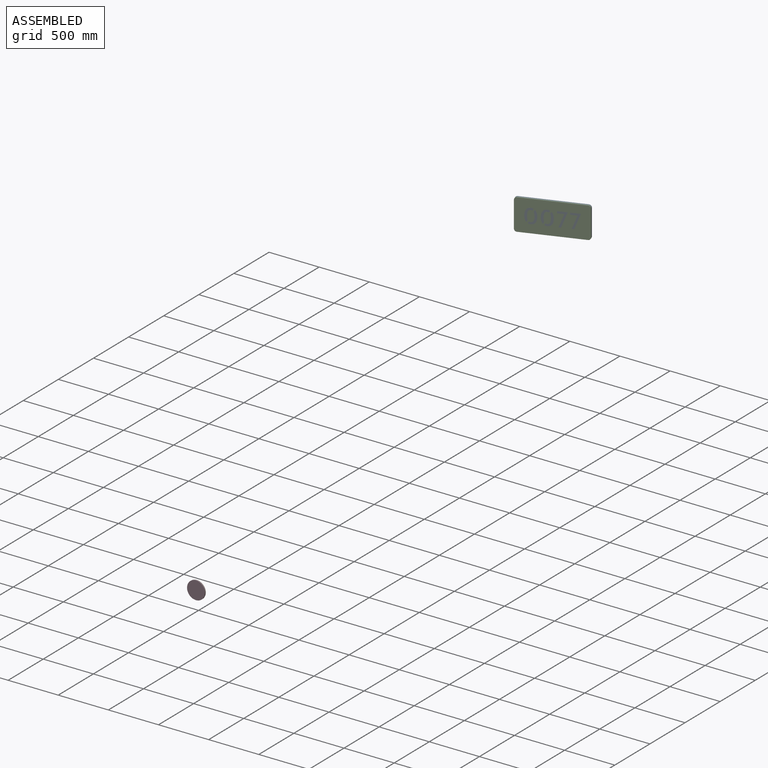
[diagram: assembled view]
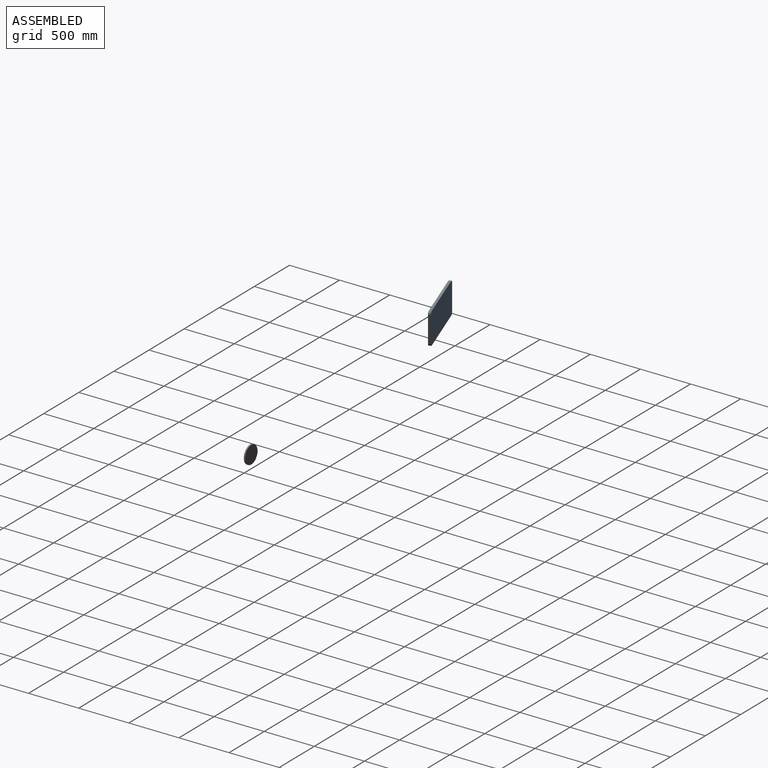
[diagram: assembled view, second angle]
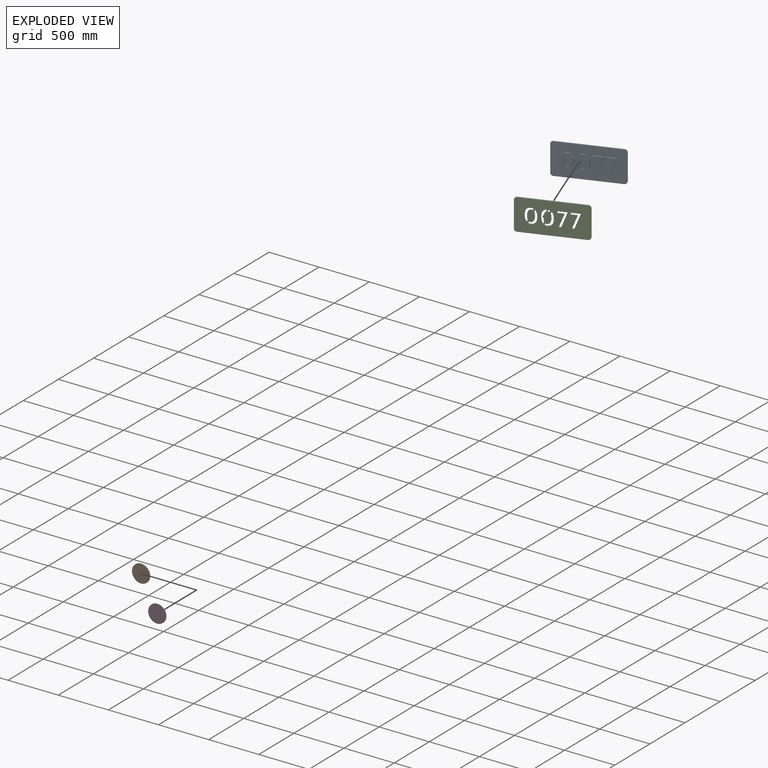
[diagram: exploded view]
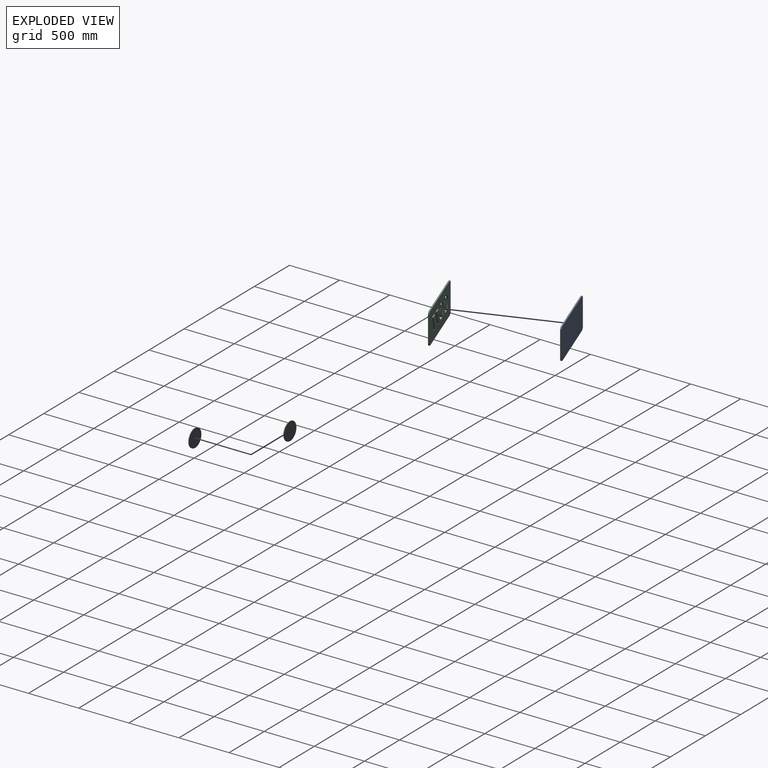
[diagram: exploded view, second angle]
ASSEMBLY  parts=4 mates=2
PART A: 94 faces, bbox 619.8x231.8x311.2 mm
  f0: plane 571.95x214.7mm, normal (0,0,-1), area 7655.5mm2, adj f1,f7,f8,f9
  f1: cylinder r=25.4mm len=28.19mm, axis (0.34,-0.94,0), area 506.7mm2, adj f0,f2,f8,f9
  f2: plane 260.35x11.96mm, normal (0.94,0.34,0), area 3306.4mm2, adj f1,f3,f8,f9
  f3: cylinder r=25.4mm len=28.19mm, axis (0.34,-0.94,0), area 506.7mm2, adj f2,f4,f8,f9
  f4: plane 571.95x214.7mm, normal (0,0,1), area 7655.5mm2, adj f3,f5,f8,f9
  f5: cylinder r=25.4mm len=28.19mm, axis (0.34,-0.94,0), area 506.7mm2, adj f4,f6,f8,f9
  f6: plane 260.35x11.96mm, normal (-0.94,-0.34,0), area 3306.4mm2, adj f5,f7,f8,f9
  f7: cylinder r=25.4mm len=28.19mm, axis (0.34,-0.94,0), area 506.7mm2, adj f0,f6,f8,f9
  f8: plane 615.52x311.15mm, normal (0.34,-0.94,0), area 179897.5mm2, adj f0,f1,f2,f3,f4,f5,f6,f7
  f9: plane 615.52x311.15mm, normal (-0.34,0.94,0), area 202812.7mm2, adj f0,f1,f2,f3,f4,f5,f6,f7
  f10: extruded ~16.65x16.38mm, area 171.9mm2, adj f8,f11,f25,f26
  f11: extruded ~17.94x16.84mm, area 194.4mm2, adj f8,f10,f12,f26
  f12: plane 18.47x14.87mm, normal (0.85,0.3,-0.42), area 259mm2, adj f8,f11,f13,f26
  f13: extruded ~26.64x19.95mm, area 311.2mm2, adj f8,f12,f14,f26
  f14: extruded ~25.99x19.72mm, area 301.5mm2, adj f8,f13,f15,f26
  f15: extruded ~20.73x17.84mm, area 287.4mm2, adj f8,f14,f16,f26
  f16: extruded ~23.07x15.66mm, area 326.7mm2, adj f8,f15,f17,f26
  f17: extruded ~32.1x13.24mm, area 411.8mm2, adj f8,f16,f18,f26
  f18: extruded ~35.83x13.61mm, area 461.1mm2, adj f8,f17,f19,f26
  f19: extruded ~24.05x17.41mm, area 356.1mm2, adj f8,f18,f20,f26
  f20: plane 22.96x15.58mm, normal (0.85,0.3,-0.42), area 322.1mm2, adj f8,f19,f21,f26
  f21: extruded ~15.71x13.34mm, area 206.7mm2, adj f8,f20,f22,f26
  f22: extruded ~21.2x12.49mm, area 270.2mm2, adj f8,f21,f23,f26
  f23: extruded ~25.52x12.78mm, area 326.2mm2, adj f8,f22,f24,f26
  f24: extruded ~16.99x14.11mm, area 231.7mm2, adj f8,f23,f25,f26
  f25: extruded ~15.33x13.71mm, area 176.3mm2, adj f8,f10,f24,f26
  f26: plane 133.88x74.49mm, normal (0.34,-0.94,0), area 3532.3mm2, adj f10,f11,f12,f13,f14,f15,f16,f17
  f27: extruded ~24.14x18.04mm, area 362.2mm2, adj f8,f28,f43,f44
  f28: plane 22.77x15.59mm, normal (-0.85,-0.3,0.43), area 320.1mm2, adj f8,f27,f29,f44
  f29: extruded ~12.02x4.45mm, area 5.5mm2, adj f8,f28,f30,f44
  f30: extruded ~15.72x13.48mm, area 208.3mm2, adj f8,f29,f31,f44
  f31: extruded ~21.6x12.55mm, area 275.4mm2, adj f8,f30,f32,f44
  f32: extruded ~25.62x12.78mm, area 327.3mm2, adj f8,f31,f33,f44
  f33: extruded ~16.98x14.11mm, area 231.5mm2, adj f8,f32,f34,f44
  f34: extruded ~15.36x13.78mm, area 177mm2, adj f8,f33,f35,f44
  f35: extruded ~16.77x16.42mm, area 173.9mm2, adj f8,f34,f36,f44
  f36: extruded ~18.68x17.11mm, area 208.3mm2, adj f8,f35,f37,f44
  f37: plane 18.66x14.93mm, normal (-0.85,-0.3,0.43), area 262.1mm2, adj f8,f36,f38,f44
  f38: extruded ~27.55x20.28mm, area 324.7mm2, adj f8,f37,f39,f44
  f39: extruded ~26.1x19.76mm, area 302.8mm2, adj f8,f38,f40,f44
  f40: extruded ~20.72x17.83mm, area 286.4mm2, adj f8,f39,f41,f44
  f41: extruded ~23.17x15.69mm, area 328.4mm2, adj f8,f40,f42,f44
  f42: extruded ~32.2x13.25mm, area 413mm2, adj f8,f41,f43,f44
  f43: extruded ~36.33x13.65mm, area 467.7mm2, adj f8,f27,f42,f44
  f44: plane 134.48x75.61mm, normal (0.34,-0.94,0), area 3588.4mm2, adj f27,f28,f29,f30,f31,f32,f33,f34
  f45: extruded ~16.65x16.38mm, area 171.9mm2, adj f8,f46,f60,f61
  f46: extruded ~17.94x16.84mm, area 194.4mm2, adj f8,f45,f47,f61
  f47: plane 18.47x14.87mm, normal (0.85,0.3,-0.42), area 259mm2, adj f8,f46,f48,f61
  f48: extruded ~26.64x19.95mm, area 311.2mm2, adj f8,f47,f49,f61
  f49: extruded ~25.99x19.72mm, area 301.5mm2, adj f8,f48,f50,f61
  f50: extruded ~20.73x17.84mm, area 287.4mm2, adj f8,f49,f51,f61
  f51: extruded ~23.07x15.66mm, area 326.7mm2, adj f8,f50,f52,f61
  f52: extruded ~32.1x13.24mm, area 411.8mm2, adj f8,f51,f53,f61
  f53: extruded ~35.83x13.61mm, area 461.1mm2, adj f8,f52,f54,f61
  f54: extruded ~24.05x17.41mm, area 356.1mm2, adj f8,f53,f55,f61
  f55: plane 22.96x15.58mm, normal (0.85,0.3,-0.42), area 322.1mm2, adj f8,f54,f56,f61
  f56: extruded ~15.71x13.34mm, area 206.7mm2, adj f8,f55,f57,f61
  f57: extruded ~21.2x12.49mm, area 270.2mm2, adj f8,f56,f58,f61
  f58: extruded ~25.52x12.78mm, area 326.2mm2, adj f8,f57,f59,f61
  f59: extruded ~16.99x14.11mm, area 231.7mm2, adj f8,f58,f60,f61
  f60: extruded ~15.33x13.71mm, area 176.3mm2, adj f8,f45,f59,f61
  f61: plane 133.88x74.49mm, normal (0.34,-0.94,0), area 3532.3mm2, adj f45,f46,f47,f48,f49,f50,f51,f52
  f62: extruded ~24.14x18.04mm, area 362.2mm2, adj f8,f63,f78,f79
  f63: plane 22.77x15.59mm, normal (-0.85,-0.3,0.43), area 320.1mm2, adj f8,f62,f64,f79
  f64: extruded ~12.02x4.45mm, area 5.5mm2, adj f8,f63,f65,f79
  f65: extruded ~15.72x13.48mm, area 208.3mm2, adj f8,f64,f66,f79
  f66: extruded ~21.6x12.55mm, area 275.4mm2, adj f8,f65,f67,f79
  f67: extruded ~25.62x12.78mm, area 327.3mm2, adj f8,f66,f68,f79
  f68: extruded ~16.98x14.11mm, area 231.5mm2, adj f8,f67,f69,f79
  f69: extruded ~15.36x13.78mm, area 177mm2, adj f8,f68,f70,f79
  f70: extruded ~16.77x16.42mm, area 173.9mm2, adj f8,f69,f71,f79
  f71: extruded ~18.68x17.11mm, area 208.3mm2, adj f8,f70,f72,f79
  f72: plane 18.66x14.93mm, normal (-0.85,-0.3,0.43), area 262.1mm2, adj f8,f71,f73,f79
  f73: extruded ~27.55x20.28mm, area 324.7mm2, adj f8,f72,f74,f79
  f74: extruded ~26.1x19.76mm, area 302.8mm2, adj f8,f73,f75,f79
  f75: extruded ~20.72x17.83mm, area 286.4mm2, adj f8,f74,f76,f79
  f76: extruded ~23.17x15.69mm, area 328.4mm2, adj f8,f75,f77,f79
  f77: extruded ~32.2x13.25mm, area 413mm2, adj f8,f76,f78,f79
  f78: extruded ~36.33x13.65mm, area 467.7mm2, adj f8,f62,f77,f79
  f79: plane 134.48x75.61mm, normal (0.34,-0.94,0), area 3588.4mm2, adj f62,f63,f64,f65,f66,f67,f68,f69
  f80: plane 125.46x51.6mm, normal (-0.87,-0.31,0.37), area 1716.4mm2, adj f8,f81,f85,f86
  f81: plane 24.98x19.36mm, normal (0,0,-1), area 279.3mm2, adj f8,f80,f82,f86
  f82: plane 144.69x57.16mm, normal (0.88,0.31,-0.36), area 1971.1mm2, adj f8,f81,f83,f86
  f83: plane 89.88x42.54mm, normal (0,0,1), area 1154.5mm2, adj f8,f82,f84,f86
  f84: plane 19.22x11.96mm, normal (-0.94,-0.34,0), area 244.1mm2, adj f8,f83,f85,f86
  f85: plane 63.61x33.15mm, normal (0,0,-1), area 800.3mm2, adj f8,f80,f84,f86
  f86: plane 144.69x85.61mm, normal (0.34,-0.94,0), area 4336.9mm2, adj f80,f81,f82,f83,f84,f85
  f87: plane 125.46x51.6mm, normal (-0.87,-0.31,0.37), area 1716.4mm2, adj f8,f88,f92,f93
  f88: plane 24.98x19.36mm, normal (0,0,-1), area 279.3mm2, adj f8,f87,f89,f93
  f89: plane 144.69x57.16mm, normal (0.88,0.31,-0.36), area 1971.1mm2, adj f8,f88,f90,f93
  f90: plane 89.88x42.54mm, normal (0,0,1), area 1154.5mm2, adj f8,f89,f91,f93
  f91: plane 19.22x11.96mm, normal (-0.94,-0.34,0), area 244.1mm2, adj f8,f90,f92,f93
  f92: plane 63.61x33.15mm, normal (0,0,-1), area 800.3mm2, adj f8,f87,f91,f93
  f93: plane 144.69x85.61mm, normal (0.34,-0.94,0), area 4336.9mm2, adj f87,f88,f89,f90,f91,f92
PART B: 3 faces, bbox 177.8x6.4x177.8 mm
  f0: cylinder r=88.9mm len=177.8mm, axis (0,1,0), area 3547mm2, adj f1,f2
  f1: plane 177.8x177.8mm, normal (0,-1,0), area 24828.7mm2, adj f0
  f2: plane 177.8x177.8mm, normal (0,1,0), area 24828.7mm2, adj f0
PART C: 88 faces, bbox 619.8x231.8x311.2 mm
  f0: extruded ~17.94x16.84mm, area 194.4mm2, adj f1,f85,f86,f87
  f1: extruded ~16.65x16.38mm, area 171.9mm2, adj f0,f2,f86,f87
  f2: extruded ~15.33x13.71mm, area 176.3mm2, adj f1,f3,f86,f87
  f3: extruded ~16.99x14.11mm, area 231.7mm2, adj f2,f4,f86,f87
  f4: extruded ~25.52x12.78mm, area 326.2mm2, adj f3,f5,f86,f87
  f5: extruded ~21.2x12.49mm, area 270.2mm2, adj f4,f6,f86,f87
  f6: extruded ~15.71x13.34mm, area 206.7mm2, adj f5,f7,f86,f87
  f7: plane 22.96x15.58mm, normal (-0.85,-0.3,0.42), area 322.1mm2, adj f6,f8,f86,f87
  f8: extruded ~24.05x17.41mm, area 356.1mm2, adj f7,f9,f86,f87
  f9: extruded ~35.83x13.61mm, area 461.1mm2, adj f8,f10,f86,f87
  f10: extruded ~32.1x13.24mm, area 411.8mm2, adj f9,f11,f86,f87
  f11: extruded ~23.07x15.66mm, area 326.7mm2, adj f10,f12,f86,f87
  f12: extruded ~20.73x17.84mm, area 287.4mm2, adj f11,f13,f86,f87
  f13: extruded ~25.99x19.72mm, area 301.5mm2, adj f12,f14,f86,f87
  f14: extruded ~26.64x19.95mm, area 311.2mm2, adj f13,f85,f86,f87
  f15: plane 22.77x15.59mm, normal (0.85,0.3,-0.43), area 320.1mm2, adj f16,f79,f86,f87
  f16: extruded ~24.14x18.04mm, area 362.2mm2, adj f15,f17,f86,f87
  f17: extruded ~36.33x13.65mm, area 467.7mm2, adj f16,f18,f86,f87
  f18: extruded ~32.2x13.25mm, area 413mm2, adj f17,f19,f86,f87
  f19: extruded ~23.17x15.69mm, area 328.4mm2, adj f18,f20,f86,f87
  f20: extruded ~20.72x17.83mm, area 286.4mm2, adj f19,f21,f86,f87
  f21: extruded ~26.1x19.76mm, area 302.8mm2, adj f20,f22,f86,f87
  f22: extruded ~27.55x20.28mm, area 324.7mm2, adj f21,f23,f86,f87
  f23: plane 18.66x14.93mm, normal (0.85,0.3,-0.43), area 262.1mm2, adj f22,f24,f86,f87
  f24: extruded ~18.68x17.11mm, area 208.3mm2, adj f23,f25,f86,f87
  f25: extruded ~16.77x16.42mm, area 173.9mm2, adj f24,f26,f86,f87
  f26: extruded ~15.36x13.78mm, area 177mm2, adj f25,f27,f86,f87
  f27: extruded ~16.98x14.11mm, area 231.5mm2, adj f26,f28,f86,f87
  f28: extruded ~25.62x12.78mm, area 327.3mm2, adj f27,f29,f86,f87
  f29: extruded ~21.6x12.55mm, area 275.4mm2, adj f28,f30,f86,f87
  f30: extruded ~15.72x13.48mm, area 208.3mm2, adj f29,f79,f86,f87
  f31: extruded ~17.94x16.84mm, area 194.4mm2, adj f32,f80,f86,f87
  f32: extruded ~16.65x16.38mm, area 171.9mm2, adj f31,f33,f86,f87
  f33: extruded ~15.33x13.71mm, area 176.3mm2, adj f32,f34,f86,f87
  f34: extruded ~16.99x14.11mm, area 231.7mm2, adj f33,f35,f86,f87
  f35: extruded ~25.52x12.78mm, area 326.2mm2, adj f34,f36,f86,f87
  f36: extruded ~21.2x12.49mm, area 270.2mm2, adj f35,f37,f86,f87
  f37: extruded ~15.71x13.34mm, area 206.7mm2, adj f36,f38,f86,f87
  f38: plane 22.96x15.58mm, normal (-0.85,-0.3,0.42), area 322.1mm2, adj f37,f39,f86,f87
  f39: extruded ~24.05x17.41mm, area 356.1mm2, adj f38,f40,f86,f87
  f40: extruded ~35.83x13.61mm, area 461.1mm2, adj f39,f41,f86,f87
  f41: extruded ~32.1x13.24mm, area 411.8mm2, adj f40,f42,f86,f87
  f42: extruded ~23.07x15.66mm, area 326.7mm2, adj f41,f43,f86,f87
  f43: extruded ~20.73x17.84mm, area 287.4mm2, adj f42,f44,f86,f87
  f44: extruded ~25.99x19.72mm, area 301.5mm2, adj f43,f45,f86,f87
  f45: extruded ~26.64x19.95mm, area 311.2mm2, adj f44,f80,f86,f87
  f46: plane 22.77x15.59mm, normal (0.85,0.3,-0.43), area 320.1mm2, adj f47,f81,f86,f87
  f47: extruded ~24.14x18.04mm, area 362.2mm2, adj f46,f48,f86,f87
  f48: extruded ~36.33x13.65mm, area 467.7mm2, adj f47,f49,f86,f87
  f49: extruded ~32.2x13.25mm, area 413mm2, adj f48,f50,f86,f87
  f50: extruded ~23.17x15.69mm, area 328.4mm2, adj f49,f51,f86,f87
  f51: extruded ~20.72x17.83mm, area 286.4mm2, adj f50,f52,f86,f87
  f52: extruded ~26.1x19.76mm, area 302.8mm2, adj f51,f53,f86,f87
  f53: extruded ~27.55x20.28mm, area 324.7mm2, adj f52,f54,f86,f87
  f54: plane 18.66x14.93mm, normal (0.85,0.3,-0.43), area 262.1mm2, adj f53,f55,f86,f87
  f55: extruded ~18.68x17.11mm, area 208.3mm2, adj f54,f56,f86,f87
  f56: extruded ~16.77x16.42mm, area 173.9mm2, adj f55,f57,f86,f87
  f57: extruded ~15.36x13.78mm, area 177mm2, adj f56,f58,f86,f87
  f58: extruded ~16.98x14.11mm, area 231.5mm2, adj f57,f59,f86,f87
  f59: extruded ~25.62x12.78mm, area 327.3mm2, adj f58,f60,f86,f87
  f60: extruded ~21.6x12.55mm, area 275.4mm2, adj f59,f61,f86,f87
  f61: extruded ~15.72x13.48mm, area 208.3mm2, adj f60,f81,f86,f87
  f62: plane 24.98x19.36mm, normal (0,0,1), area 279.3mm2, adj f63,f82,f86,f87
  f63: plane 125.46x51.6mm, normal (0.87,0.31,-0.37), area 1716.4mm2, adj f62,f64,f86,f87
  f64: plane 63.61x33.15mm, normal (0,0,1), area 800.3mm2, adj f63,f65,f86,f87
  f65: plane 19.22x11.96mm, normal (0.94,0.34,0), area 244.1mm2, adj f64,f66,f86,f87
  f66: plane 89.88x42.54mm, normal (0,0,-1), area 1154.5mm2, adj f65,f82,f86,f87
  f67: plane 24.98x19.36mm, normal (0,0,1), area 279.3mm2, adj f68,f83,f86,f87
  f68: plane 125.46x51.6mm, normal (0.87,0.31,-0.37), area 1716.4mm2, adj f67,f69,f86,f87
  f69: plane 63.61x33.15mm, normal (0,0,1), area 800.3mm2, adj f68,f70,f86,f87
  f70: plane 19.22x11.96mm, normal (0.94,0.34,0), area 244.1mm2, adj f69,f71,f86,f87
  f71: plane 89.88x42.54mm, normal (0,0,-1), area 1154.5mm2, adj f70,f83,f86,f87
  f72: cylinder r=25.4mm len=28.19mm, axis (-0.34,0.94,0), area 506.7mm2, adj f73,f84,f86,f87
  f73: plane 260.35x11.96mm, normal (-0.94,-0.34,0), area 3306.4mm2, adj f72,f74,f86,f87
  f74: cylinder r=25.4mm len=28.19mm, axis (-0.34,0.94,0), area 506.7mm2, adj f73,f75,f86,f87
  f75: plane 571.95x214.7mm, normal (0,0,-1), area 7655.5mm2, adj f74,f76,f86,f87
  f76: cylinder r=25.4mm len=28.19mm, axis (-0.34,0.94,0), area 506.7mm2, adj f75,f77,f86,f87
  f77: plane 260.35x11.96mm, normal (0.94,0.34,0), area 3306.4mm2, adj f76,f78,f86,f87
  f78: cylinder r=25.4mm len=28.19mm, axis (-0.34,0.94,0), area 506.7mm2, adj f77,f84,f86,f87
  f79: extruded ~12.02x4.45mm, area 5.5mm2, adj f15,f30,f86,f87
  f80: plane 18.47x14.87mm, normal (-0.85,-0.3,0.42), area 259mm2, adj f31,f45,f86,f87
  f81: extruded ~12.02x4.45mm, area 5.5mm2, adj f46,f61,f86,f87
  f82: plane 144.69x57.16mm, normal (-0.88,-0.31,0.36), area 1971.1mm2, adj f62,f66,f86,f87
  f83: plane 144.69x57.16mm, normal (-0.88,-0.31,0.36), area 1971.1mm2, adj f67,f71,f86,f87
  f84: plane 571.95x214.7mm, normal (0,0,1), area 7655.5mm2, adj f72,f78,f86,f87
  f85: plane 18.47x14.87mm, normal (-0.85,-0.3,0.42), area 259mm2, adj f0,f14,f86,f87
  f86: plane 615.52x311.15mm, normal (0.34,-0.94,0), area 179897.5mm2, adj f0,f1,f2,f3,f4,f5,f6,f7
  f87: plane 615.52x311.15mm, normal (-0.34,0.94,0), area 179897.5mm2, adj f0,f1,f2,f3,f4,f5,f6,f7
PART D: 3 faces, bbox 177.8x6.4x177.8 mm
  f0: cylinder r=88.9mm len=177.8mm, axis (0,1,0), area 3547mm2, adj f1,f2
  f1: plane 177.8x177.8mm, normal (0,-1,0), area 24828.7mm2, adj f0
  f2: plane 177.8x177.8mm, normal (0,1,0), area 24828.7mm2, adj f0
PLACE A at identity fixed
PLACE B at identity fixed
PLACE C at identity
PLACE D at identity
MATE fastened B.f0 <-> D.f0  axis (0,-1,0) through (-1045.42,-3967.11,209.55)mm
MATE fastened A.f8 <-> C.f87  axis (0.34,-0.94,0) through (452.93,-1029.44,2686.05)mm
